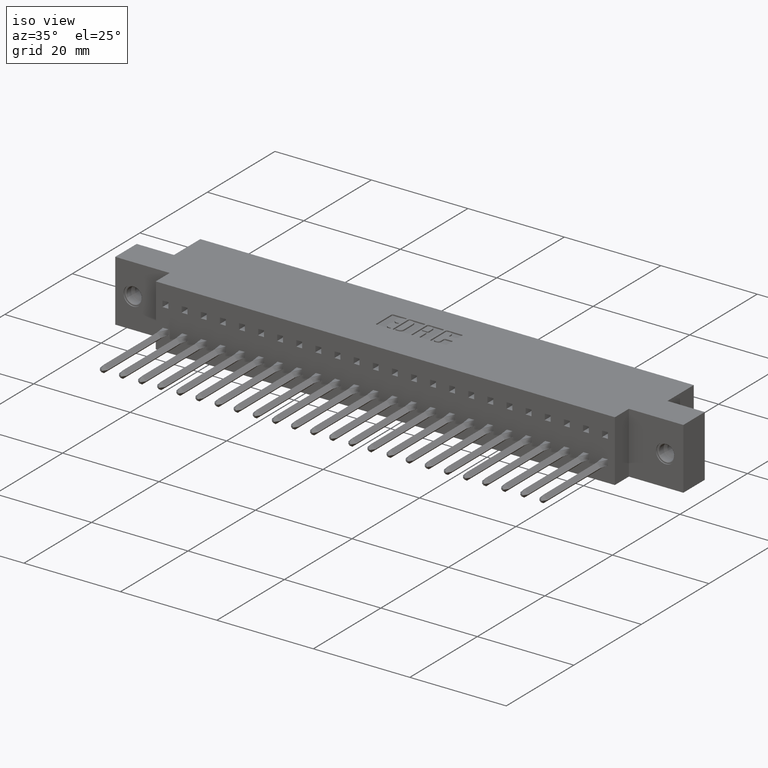
[diagram: clean part render]
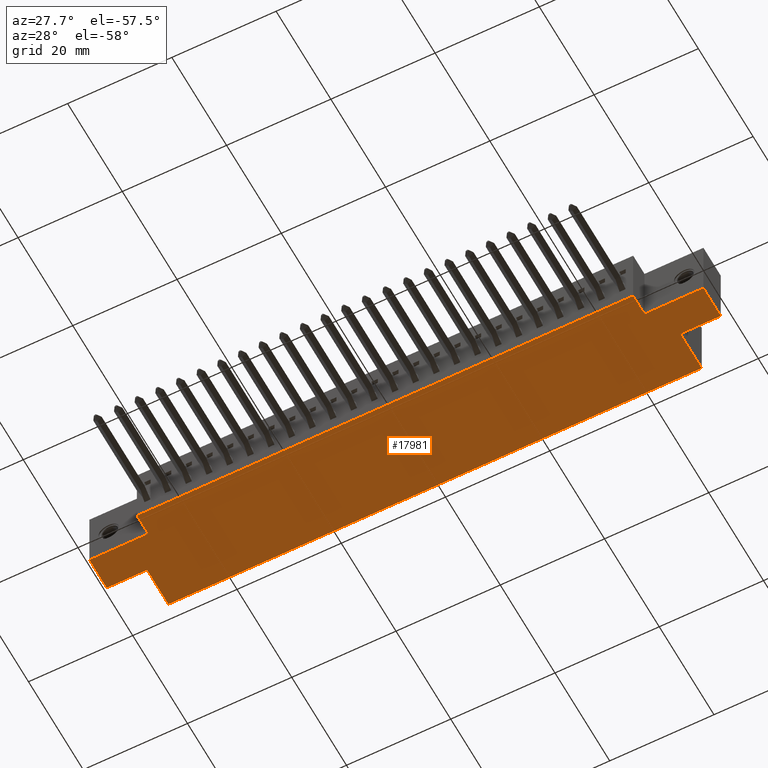
[diagram: tour spotlight — one face highlighted and labeled with its STEP entity id]
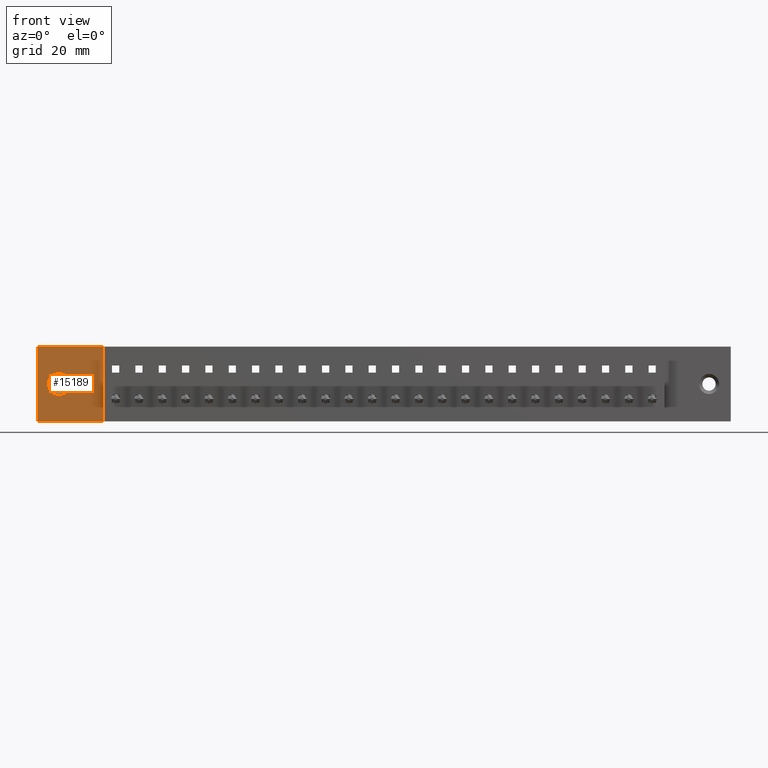
[diagram: tour spotlight — one face highlighted and labeled with its STEP entity id]
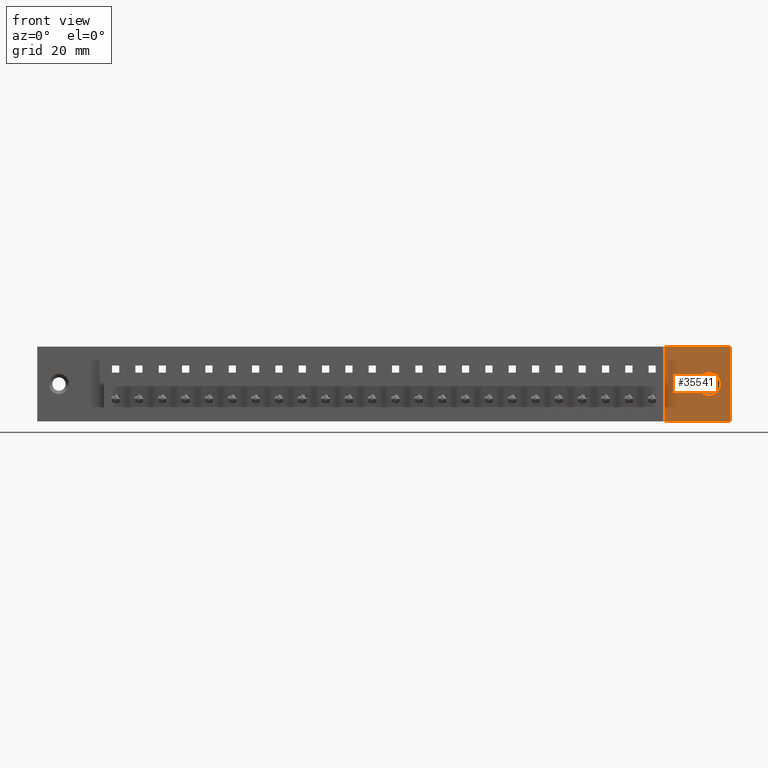
[diagram: tour spotlight — one face highlighted and labeled with its STEP entity id]
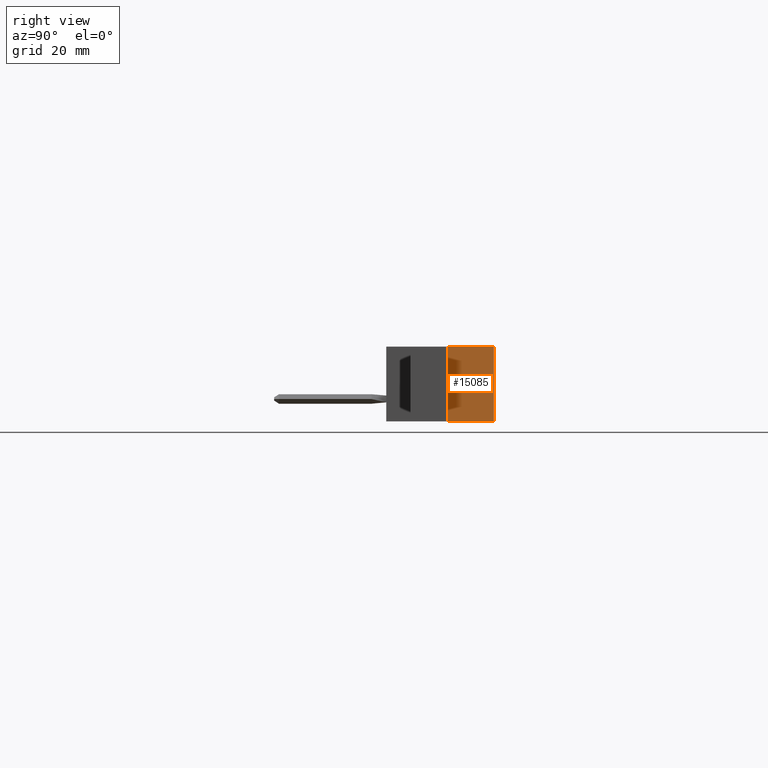
[diagram: tour spotlight — one face highlighted and labeled with its STEP entity id]
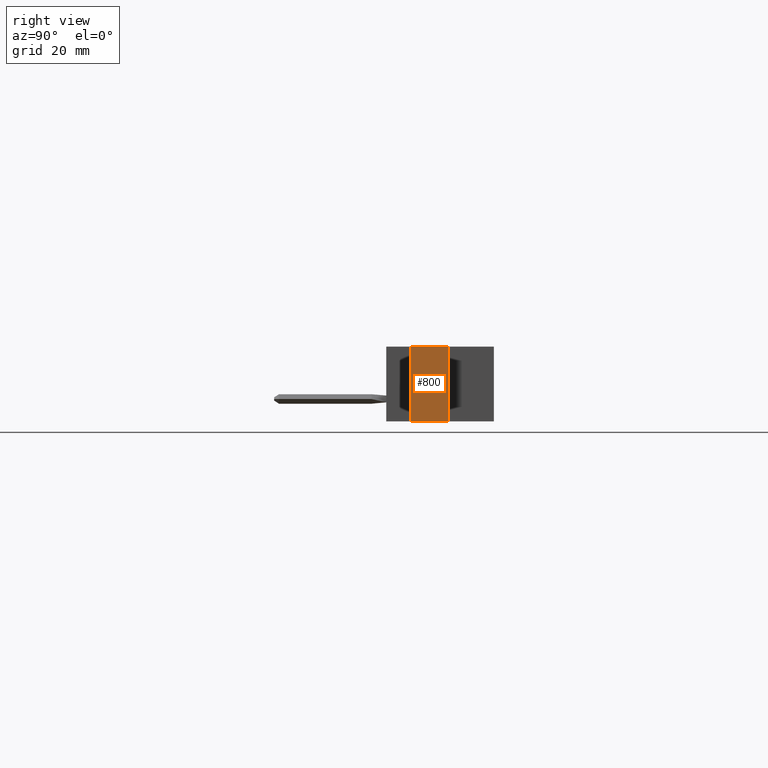
[diagram: tour spotlight — one face highlighted and labeled with its STEP entity id]
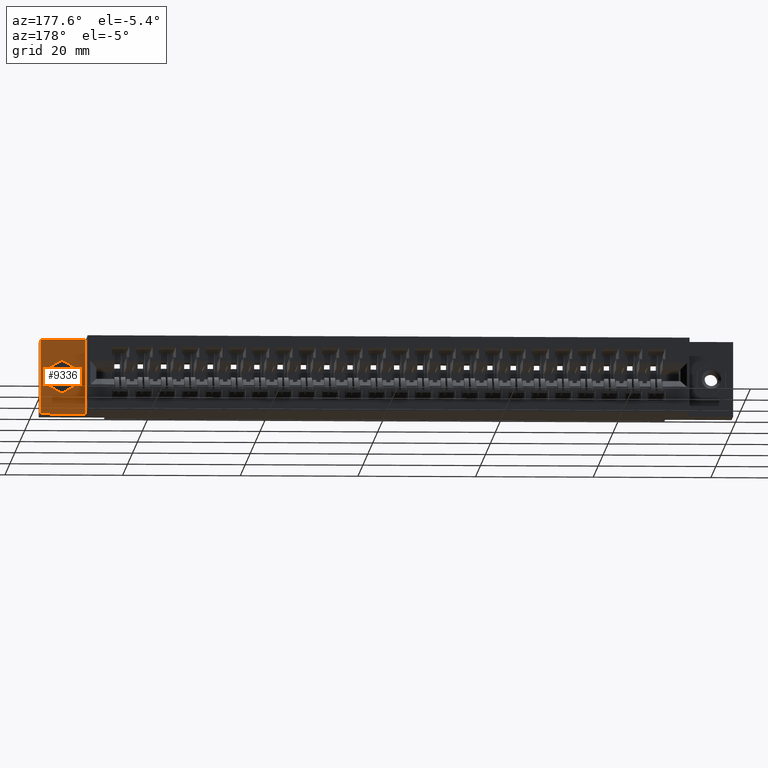
[diagram: tour spotlight — one face highlighted and labeled with its STEP entity id]
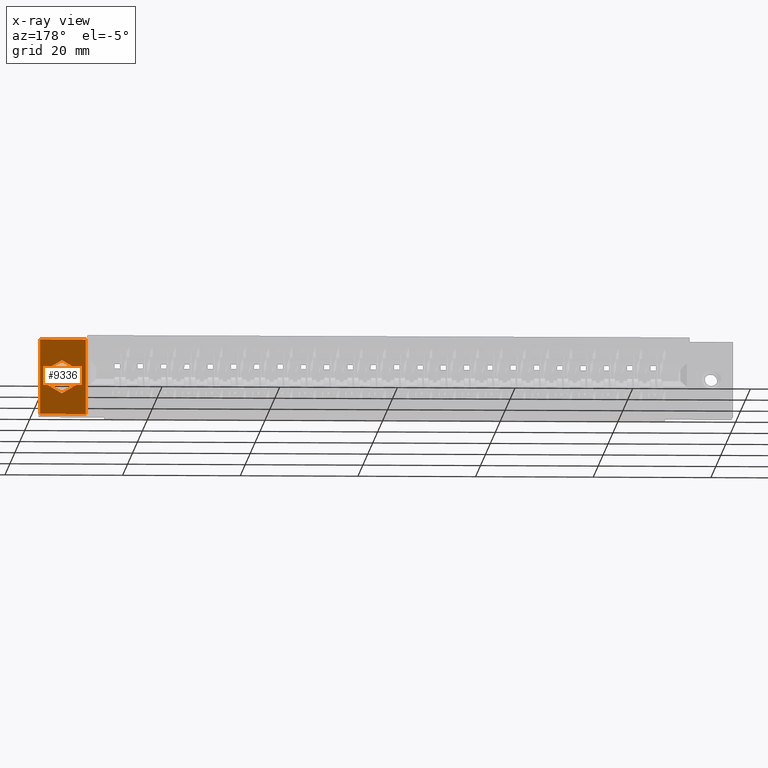
[diagram: x-ray of the same camera — body ghosted, this tour face saturated]
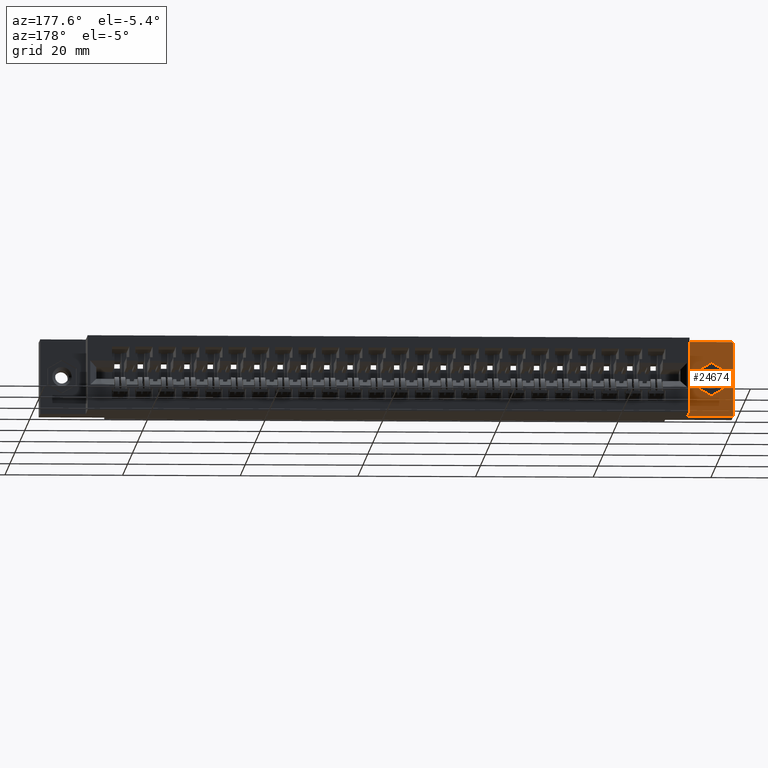
[diagram: tour spotlight — one face highlighted and labeled with its STEP entity id]
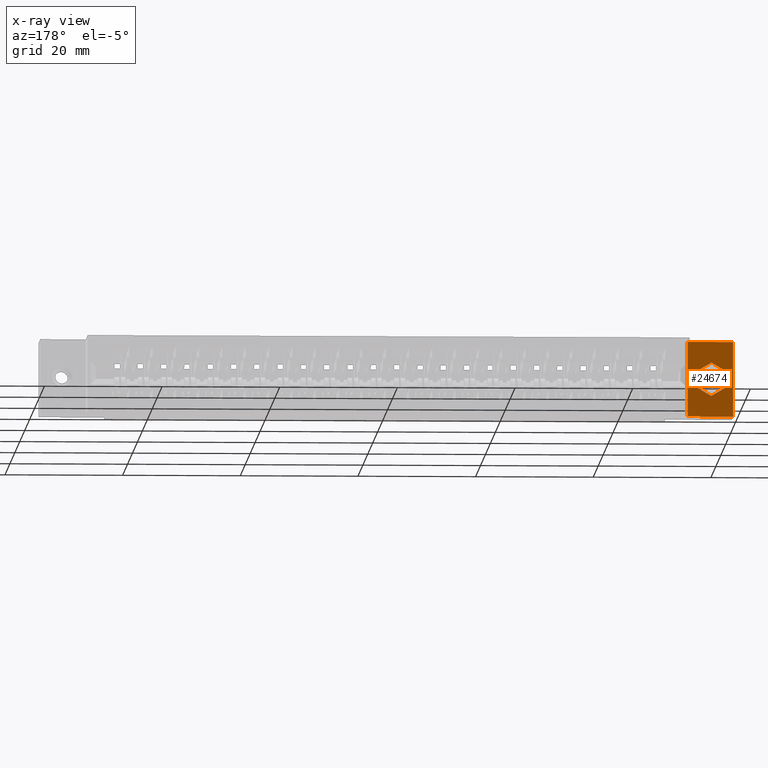
[diagram: x-ray of the same camera — body ghosted, this tour face saturated]
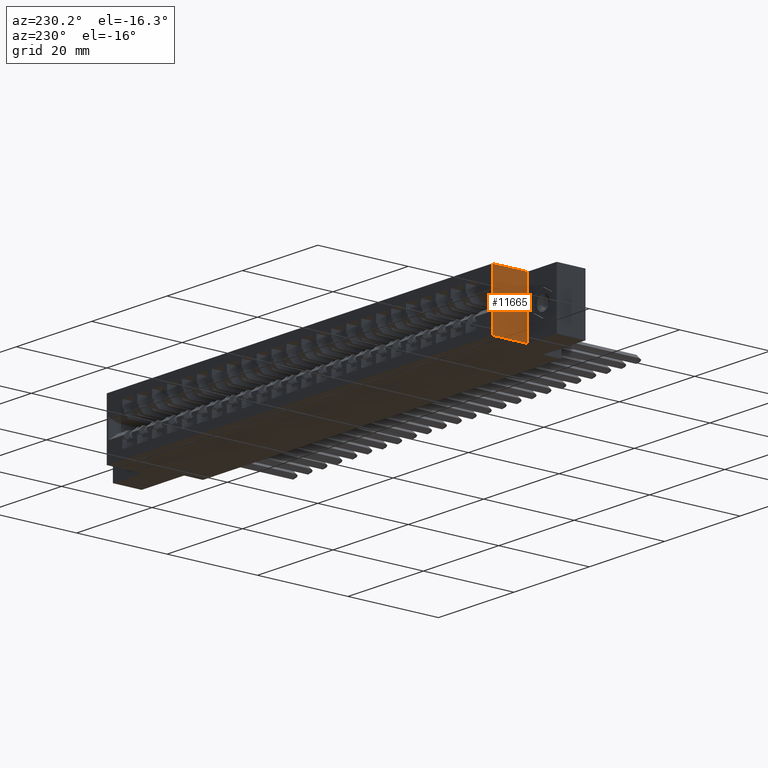
[diagram: tour spotlight — one face highlighted and labeled with its STEP entity id]
A machine part: a face-by-face anatomy tour. The part has 1962 B-rep faces; the first image is the clean iso view, then the 8 largest visible faces are spotlighted one at a time (largest first), each with its STEP entity span.

Face 1 — auxiliary view, entity #17981. In plain terms, the highlighted planar face has unit normal (0, 0, 1).
Definition (entity closure, byte-faithful):
#41 = EDGE_CURVE ( 'NONE', #26430, #31871, #36099, .T. ) ;
#1032 = CARTESIAN_POINT ( 'NONE',  ( 0.3050000000000000500, 0.4129999999999999200, -0.5000000000000000000 ) ) ;
#1100 = VERTEX_POINT ( 'NONE', #18389 ) ;
#1151 = DIRECTION ( 'NONE',  ( -1.000000000000000000, 0.0000000000000000000, -1.567453766856546600E-015 ) ) ;
#1240 = ORIENTED_EDGE ( 'NONE', *, *, #16453, .F. ) ;
#1256 = LINE ( 'NONE', #11097, #5221 ) ;
#1790 = EDGE_CURVE ( 'NONE', #26796, #2956, #12428, .T. ) ;
#2176 = VERTEX_POINT ( 'NONE', #5440 ) ;
#2956 = VERTEX_POINT ( 'NONE', #13789 ) ;
#3105 = CARTESIAN_POINT ( 'NONE',  ( 0.4450000000000002800, 0.1630000000000000100, -0.4999999999999997200 ) ) ;
#3253 = DIRECTION ( 'NONE',  ( -0.0000000000000000000, -1.000000000000000000, -0.0000000000000000000 ) ) ;
#3371 = EDGE_CURVE ( 'NONE', #4880, #31871, #4622, .T. ) ;
#4124 = CARTESIAN_POINT ( 'NONE',  ( 4.637999999999999900, 0.4129999999999999200, -0.5000000000000000000 ) ) ;
#4132 = CARTESIAN_POINT ( 'NONE',  ( 0.4450000000000002800, 0.1630000000000000100, -0.4999999999999997200 ) ) ;
#4388 = CARTESIAN_POINT ( 'NONE',  ( 4.192999999999999600, 0.1630000000000000100, -0.5000000000000000000 ) ) ;
#4448 = VERTEX_POINT ( 'NONE', #3105 ) ;
#4462 = CARTESIAN_POINT ( 'NONE',  ( 4.637999999999999900, 0.1630000000000000100, -0.5000000000000000000 ) ) ;
#4622 = LINE ( 'NONE', #7631, #19629 ) ;
#4880 = VERTEX_POINT ( 'NONE', #10275 ) ;
#5221 = VECTOR ( 'NONE', #3253, 39.37007874015748100 ) ;
#5440 = CARTESIAN_POINT ( 'NONE',  ( 0.4450000000000002800, 0.0000000000000000000, -0.4999999999999997200 ) ) ;
#5673 = ORIENTED_EDGE ( 'NONE', *, *, #21055, .F. ) ;
#5964 = VERTEX_POINT ( 'NONE', #31586 ) ;
#6850 = ORIENTED_EDGE ( 'NONE', *, *, #24984, .F. ) ;
#7311 = DIRECTION ( 'NONE',  ( 1.000000000000000000, -0.0000000000000000000, -1.688220670241959300E-015 ) ) ;
#7563 = DIRECTION ( 'NONE',  ( -0.0000000000000000000, -1.000000000000000000, -0.0000000000000000000 ) ) ;
#7631 = CARTESIAN_POINT ( 'NONE',  ( 4.637999999999999900, 0.7199999999999999700, -0.5000000000000000000 ) ) ;
#7806 = CARTESIAN_POINT ( 'NONE',  ( 0.0000000000000000000, 0.1630000000000000100, -0.5000000000000002200 ) ) ;
#8424 = ORIENTED_EDGE ( 'NONE', *, *, #41, .F. ) ;
#8487 = LINE ( 'NONE', #7806, #26538 ) ;
#8678 = ORIENTED_EDGE ( 'NONE', *, *, #1790, .F. ) ;
#8847 = DIRECTION ( 'NONE',  ( -1.000000000000000000, -0.0000000000000000000, -0.0000000000000000000 ) ) ;
#9886 = VECTOR ( 'NONE', #35419, 39.37007874015748100 ) ;
#10030 = EDGE_CURVE ( 'NONE', #17677, #2176, #18597, .T. ) ;
#10271 = VECTOR ( 'NONE', #7563, 39.37007874015748100 ) ;
#10275 = CARTESIAN_POINT ( 'NONE',  ( 4.637999999999999900, 0.4129999999999999200, -0.5000000000000000000 ) ) ;
#10747 = CARTESIAN_POINT ( 'NONE',  ( 4.333000000000000200, 0.4129999999999999200, -0.5000000000000004400 ) ) ;
#11097 = CARTESIAN_POINT ( 'NONE',  ( 4.192999999999999600, 0.1630000000000000100, -0.4999999999999992200 ) ) ;
#12061 = EDGE_CURVE ( 'NONE', #26430, #17677, #1256, .T. ) ;
#12186 = VERTEX_POINT ( 'NONE', #27842 ) ;
#12428 = LINE ( 'NONE', #10747, #19998 ) ;
#12821 = VECTOR ( 'NONE', #1151, 39.37007874015748100 ) ;
#13030 = CARTESIAN_POINT ( 'NONE',  ( 0.0000000000000000000, 0.4129999999999999200, -0.5000000000000000000 ) ) ;
#13132 = DIRECTION ( 'NONE',  ( -0.0000000000000000000, -1.000000000000000000, -0.0000000000000000000 ) ) ;
#13451 = AXIS2_PLACEMENT_3D ( 'NONE', #19022, #21745, #30379 ) ;
#13789 = CARTESIAN_POINT ( 'NONE',  ( 4.333000000000000200, 0.7199999999999999700, -0.5000000000000004400 ) ) ;
#14372 = CARTESIAN_POINT ( 'NONE',  ( 0.0000000000000000000, 0.7199999999999999700, -0.5000000000000000000 ) ) ;
#14384 = VECTOR ( 'NONE', #27646, 39.37007874015748100 ) ;
#14776 = DIRECTION ( 'NONE',  ( -1.000000000000000000, -0.0000000000000000000, -0.0000000000000000000 ) ) ;
#15328 = ORIENTED_EDGE ( 'NONE', *, *, #16559, .F. ) ;
#15415 = ORIENTED_EDGE ( 'NONE', *, *, #29865, .T. ) ;
#15527 = LINE ( 'NONE', #24410, #10271 ) ;
#16453 = EDGE_CURVE ( 'NONE', #12186, #1100, #15527, .T. ) ;
#16559 = EDGE_CURVE ( 'NONE', #1100, #4448, #8487, .T. ) ;
#16913 = LINE ( 'NONE', #14372, #34151 ) ;
#17513 = CARTESIAN_POINT ( 'NONE',  ( 4.333000000000000200, 0.4129999999999999200, -0.5000000000000004400 ) ) ;
#17677 = VERTEX_POINT ( 'NONE', #30797 ) ;
#17705 = LINE ( 'NONE', #4124, #12821 ) ;
#17883 = LINE ( 'NONE', #25005, #34654 ) ;
#17981 = ADVANCED_FACE ( 'NONE', ( #27838 ), #21375, .F. ) ;
#18389 = CARTESIAN_POINT ( 'NONE',  ( 0.0000000000000000000, 0.1630000000000000100, -0.5000000000000000000 ) ) ;
#18597 = LINE ( 'NONE', #23183, #22577 ) ;
#19022 = CARTESIAN_POINT ( 'NONE',  ( 0.0000000000000000000, 0.7199999999999999700, -0.5000000000000000000 ) ) ;
#19330 = ORIENTED_EDGE ( 'NONE', *, *, #34921, .F. ) ;
#19629 = VECTOR ( 'NONE', #13132, 39.37007874015748100 ) ;
#19998 = VECTOR ( 'NONE', #27406, 39.37007874015748100 ) ;
#21055 = EDGE_CURVE ( 'NONE', #2956, #5964, #16913, .T. ) ;
#21375 = PLANE ( 'NONE',  #13451 ) ;
#21745 = DIRECTION ( 'NONE',  ( 0.0000000000000000000, 0.0000000000000000000, 1.000000000000000000 ) ) ;
#22577 = VECTOR ( 'NONE', #14776, 39.37007874015748100 ) ;
#23183 = CARTESIAN_POINT ( 'NONE',  ( 0.0000000000000000000, 0.0000000000000000000, -0.5000000000000000000 ) ) ;
#24165 = ORIENTED_EDGE ( 'NONE', *, *, #27884, .F. ) ;
#24410 = CARTESIAN_POINT ( 'NONE',  ( 0.0000000000000000000, 0.7199999999999999700, -0.5000000000000000000 ) ) ;
#24982 = LINE ( 'NONE', #4132, #14384 ) ;
#24984 = EDGE_CURVE ( 'NONE', #4448, #2176, #24982, .T. ) ;
#25005 = CARTESIAN_POINT ( 'NONE',  ( 0.3049999999999999900, 0.4129999999999999200, -0.5000000000000000000 ) ) ;
#25373 = DIRECTION ( 'NONE',  ( -0.0000000000000000000, 1.000000000000000000, -0.0000000000000000000 ) ) ;
#26430 = VERTEX_POINT ( 'NONE', #4388 ) ;
#26538 = VECTOR ( 'NONE', #27635, 39.37007874015748100 ) ;
#26796 = VERTEX_POINT ( 'NONE', #17513 ) ;
#26951 = EDGE_LOOP ( 'NONE', ( #33294, #6850, #15328, #1240, #24165, #15415, #5673, #8678, #19330, #30341, #8424, #31322 ) ) ;
#27406 = DIRECTION ( 'NONE',  ( -0.0000000000000000000, 1.000000000000000000, -0.0000000000000000000 ) ) ;
#27635 = DIRECTION ( 'NONE',  ( 1.000000000000000000, 0.0000000000000000000, 1.227796851085061300E-015 ) ) ;
#27646 = DIRECTION ( 'NONE',  ( -0.0000000000000000000, -1.000000000000000000, -0.0000000000000000000 ) ) ;
#27838 = FACE_OUTER_BOUND ( 'NONE', #26951, .T. ) ;
#27842 = CARTESIAN_POINT ( 'NONE',  ( 0.0000000000000000000, 0.4129999999999999200, -0.5000000000000000000 ) ) ;
#27884 = EDGE_CURVE ( 'NONE', #30901, #12186, #32442, .T. ) ;
#29865 = EDGE_CURVE ( 'NONE', #30901, #5964, #17883, .T. ) ;
#30341 = ORIENTED_EDGE ( 'NONE', *, *, #3371, .T. ) ;
#30379 = DIRECTION ( 'NONE',  ( 1.000000000000000000, 0.0000000000000000000, -0.0000000000000000000 ) ) ;
#30784 = CARTESIAN_POINT ( 'NONE',  ( 4.637999999999999900, 0.1630000000000000100, -0.5000000000000000000 ) ) ;
#30797 = CARTESIAN_POINT ( 'NONE',  ( 4.192999999999999600, 0.0000000000000000000, -0.4999999999999992200 ) ) ;
#30901 = VERTEX_POINT ( 'NONE', #1032 ) ;
#31322 = ORIENTED_EDGE ( 'NONE', *, *, #12061, .T. ) ;
#31586 = CARTESIAN_POINT ( 'NONE',  ( 0.3049999999999999900, 0.7199999999999999700, -0.5000000000000000000 ) ) ;
#31871 = VERTEX_POINT ( 'NONE', #30784 ) ;
#32113 = VECTOR ( 'NONE', #7311, 39.37007874015748100 ) ;
#32442 = LINE ( 'NONE', #13030, #9886 ) ;
#33294 = ORIENTED_EDGE ( 'NONE', *, *, #10030, .T. ) ;
#34151 = VECTOR ( 'NONE', #8847, 39.37007874015748100 ) ;
#34654 = VECTOR ( 'NONE', #25373, 39.37007874015748100 ) ;
#34921 = EDGE_CURVE ( 'NONE', #4880, #26796, #17705, .T. ) ;
#35419 = DIRECTION ( 'NONE',  ( -1.000000000000000000, -0.0000000000000000000, -0.0000000000000000000 ) ) ;
#36099 = LINE ( 'NONE', #4462, #32113 ) ;

Face 2 — front view, entity #15189. In plain terms, the highlighted planar face has unit normal (0, -1, 0).
Definition (entity closure, byte-faithful):
#219 = CARTESIAN_POINT ( 'NONE',  ( 0.1455000000000000200, 0.1630000000000000100, -0.1720000000000000100 ) ) ;
#1100 = VERTEX_POINT ( 'NONE', #18389 ) ;
#1407 = PLANE ( 'NONE',  #16725 ) ;
#1430 = VECTOR ( 'NONE', #15182, 39.37007874015748100 ) ;
#2491 = EDGE_CURVE ( 'NONE', #7950, #30888, #30585, .T. ) ;
#3105 = CARTESIAN_POINT ( 'NONE',  ( 0.4450000000000002800, 0.1630000000000000100, -0.4999999999999997200 ) ) ;
#3547 = DIRECTION ( 'NONE',  ( 0.0000000000000000000, 0.0000000000000000000, -1.000000000000000000 ) ) ;
#3723 = CARTESIAN_POINT ( 'NONE',  ( 2.731847993664263200E-016, 0.1630000000000000100, 3.951581205970576600E-015 ) ) ;
#4160 = DIRECTION ( 'NONE',  ( 0.0000000000000000000, 0.0000000000000000000, 1.000000000000000000 ) ) ;
#4448 = VERTEX_POINT ( 'NONE', #3105 ) ;
#5758 = EDGE_CURVE ( 'NONE', #4448, #7950, #9302, .T. ) ;
#5984 = VERTEX_POINT ( 'NONE', #219 ) ;
#7129 = AXIS2_PLACEMENT_3D ( 'NONE', #26046, #20402, #3547 ) ;
#7806 = CARTESIAN_POINT ( 'NONE',  ( 0.0000000000000000000, 0.1630000000000000100, -0.5000000000000002200 ) ) ;
#7950 = VERTEX_POINT ( 'NONE', #15844 ) ;
#8487 = LINE ( 'NONE', #7806, #26538 ) ;
#8952 = ORIENTED_EDGE ( 'NONE', *, *, #29910, .T. ) ;
#9302 = LINE ( 'NONE', #23251, #30487 ) ;
#10373 = FACE_BOUND ( 'NONE', #26472, .T. ) ;
#10944 = DIRECTION ( 'NONE',  ( 0.0000000000000000000, 0.0000000000000000000, -1.000000000000000000 ) ) ;
#12118 = CARTESIAN_POINT ( 'NONE',  ( 0.0000000000000000000, 0.1630000000000000100, -0.5000000000000002200 ) ) ;
#12942 = DIRECTION ( 'NONE',  ( 0.0000000000000000000, -0.0000000000000000000, -1.000000000000000000 ) ) ;
#15182 = DIRECTION ( 'NONE',  ( -5.463695987328480100E-016, -0.0000000000000000000, -1.000000000000000000 ) ) ;
#15189 = ADVANCED_FACE ( 'NONE', ( #17889, #10373 ), #1407, .T. ) ;
#15226 = ORIENTED_EDGE ( 'NONE', *, *, #18331, .T. ) ;
#15844 = CARTESIAN_POINT ( 'NONE',  ( 0.4450000000000002800, 0.1630000000000000100, -3.443706799202358000E-016 ) ) ;
#15930 = LINE ( 'NONE', #12118, #1430 ) ;
#15999 = VECTOR ( 'NONE', #26113, 39.37007874015748100 ) ;
#16504 = DIRECTION ( 'NONE',  ( -0.0000000000000000000, 1.000000000000000000, -0.0000000000000000000 ) ) ;
#16559 = EDGE_CURVE ( 'NONE', #1100, #4448, #8487, .T. ) ;
#16725 = AXIS2_PLACEMENT_3D ( 'NONE', #21487, #29875, #12942 ) ;
#17889 = FACE_OUTER_BOUND ( 'NONE', #25663, .T. ) ;
#18331 = EDGE_CURVE ( 'NONE', #5984, #25705, #30958, .T. ) ;
#18389 = CARTESIAN_POINT ( 'NONE',  ( 0.0000000000000000000, 0.1630000000000000100, -0.5000000000000000000 ) ) ;
#20402 = DIRECTION ( 'NONE',  ( -0.0000000000000000000, 1.000000000000000000, -0.0000000000000000000 ) ) ;
#21487 = CARTESIAN_POINT ( 'NONE',  ( 0.4450000000000002800, 0.1630000000000000100, -0.4999999999999997200 ) ) ;
#21760 = EDGE_CURVE ( 'NONE', #30888, #1100, #15930, .T. ) ;
#23251 = CARTESIAN_POINT ( 'NONE',  ( 0.4450000000000002800, 0.1630000000000000100, -0.4999999999999997200 ) ) ;
#23458 = CARTESIAN_POINT ( 'NONE',  ( 2.731847993664263200E-016, 0.1630000000000000100, 3.951581205970576600E-015 ) ) ;
#24100 = ORIENTED_EDGE ( 'NONE', *, *, #16559, .T. ) ;
#24442 = CIRCLE ( 'NONE', #36064, 0.07800000000000002800 ) ;
#24513 = ORIENTED_EDGE ( 'NONE', *, *, #21760, .T. ) ;
#25663 = EDGE_LOOP ( 'NONE', ( #24100, #28340, #28393, #24513 ) ) ;
#25705 = VERTEX_POINT ( 'NONE', #33424 ) ;
#26046 = CARTESIAN_POINT ( 'NONE',  ( 0.1455000000000000200, 0.1630000000000000100, -0.2500000000000000000 ) ) ;
#26113 = DIRECTION ( 'NONE',  ( -1.000000000000000000, -0.0000000000000000000, 9.653824462675984600E-015 ) ) ;
#26472 = EDGE_LOOP ( 'NONE', ( #15226, #8952 ) ) ;
#26538 = VECTOR ( 'NONE', #27635, 39.37007874015748100 ) ;
#27635 = DIRECTION ( 'NONE',  ( 1.000000000000000000, 0.0000000000000000000, 1.227796851085061300E-015 ) ) ;
#28331 = CARTESIAN_POINT ( 'NONE',  ( 0.1455000000000000200, 0.1630000000000000100, -0.2500000000000000000 ) ) ;
#28340 = ORIENTED_EDGE ( 'NONE', *, *, #5758, .T. ) ;
#28393 = ORIENTED_EDGE ( 'NONE', *, *, #2491, .T. ) ;
#29875 = DIRECTION ( 'NONE',  ( 0.0000000000000000000, -1.000000000000000000, 0.0000000000000000000 ) ) ;
#29910 = EDGE_CURVE ( 'NONE', #25705, #5984, #24442, .T. ) ;
#30487 = VECTOR ( 'NONE', #4160, 39.37007874015748100 ) ;
#30585 = LINE ( 'NONE', #3723, #15999 ) ;
#30888 = VERTEX_POINT ( 'NONE', #23458 ) ;
#30958 = CIRCLE ( 'NONE', #7129, 0.07800000000000002800 ) ;
#33424 = CARTESIAN_POINT ( 'NONE',  ( 0.1455000000000000500, 0.1630000000000000100, -0.3280000000000000100 ) ) ;
#36064 = AXIS2_PLACEMENT_3D ( 'NONE', #28331, #16504, #10944 ) ;

Face 3 — front view, entity #35541. In plain terms, the highlighted planar face has unit normal (0, -1, 0).
Definition (entity closure, byte-faithful):
#41 = EDGE_CURVE ( 'NONE', #26430, #31871, #36099, .T. ) ;
#261 = EDGE_CURVE ( 'NONE', #30299, #26430, #7786, .T. ) ;
#740 = LINE ( 'NONE', #24243, #13497 ) ;
#1362 = CARTESIAN_POINT ( 'NONE',  ( 4.637999999999999900, 0.1630000000000000100, -0.5000000000000000000 ) ) ;
#2543 = ORIENTED_EDGE ( 'NONE', *, *, #261, .T. ) ;
#3271 = ORIENTED_EDGE ( 'NONE', *, *, #21953, .T. ) ;
#3876 = ORIENTED_EDGE ( 'NONE', *, *, #32700, .T. ) ;
#4388 = CARTESIAN_POINT ( 'NONE',  ( 4.192999999999999600, 0.1630000000000000100, -0.5000000000000000000 ) ) ;
#4424 = CARTESIAN_POINT ( 'NONE',  ( 4.192999999999999600, 0.1630000000000000100, 0.0000000000000000000 ) ) ;
#4462 = CARTESIAN_POINT ( 'NONE',  ( 4.637999999999999900, 0.1630000000000000100, -0.5000000000000000000 ) ) ;
#6942 = PLANE ( 'NONE',  #35949 ) ;
#7004 = ORIENTED_EDGE ( 'NONE', *, *, #41, .T. ) ;
#7311 = DIRECTION ( 'NONE',  ( 1.000000000000000000, -0.0000000000000000000, -1.688220670241959300E-015 ) ) ;
#7786 = LINE ( 'NONE', #15336, #20587 ) ;
#7991 = EDGE_CURVE ( 'NONE', #33626, #30299, #740, .T. ) ;
#8890 = EDGE_LOOP ( 'NONE', ( #3876, #27335, #2543, #7004 ) ) ;
#11537 = EDGE_CURVE ( 'NONE', #35078, #24436, #13176, .T. ) ;
#12707 = DIRECTION ( 'NONE',  ( 0.0000000000000000000, 0.0000000000000000000, -1.000000000000000000 ) ) ;
#13176 = CIRCLE ( 'NONE', #18055, 0.07800000000000009700 ) ;
#13226 = FACE_OUTER_BOUND ( 'NONE', #8890, .T. ) ;
#13497 = VECTOR ( 'NONE', #32789, 39.37007874015748100 ) ;
#14532 = FACE_BOUND ( 'NONE', #30369, .T. ) ;
#15013 = AXIS2_PLACEMENT_3D ( 'NONE', #21626, #18395, #12707 ) ;
#15336 = CARTESIAN_POINT ( 'NONE',  ( 4.192999999999999600, 0.1630000000000000100, -0.4999999999999992200 ) ) ;
#16830 = DIRECTION ( 'NONE',  ( -0.0000000000000000000, 1.000000000000000000, -0.0000000000000000000 ) ) ;
#18055 = AXIS2_PLACEMENT_3D ( 'NONE', #22502, #16830, #36644 ) ;
#18395 = DIRECTION ( 'NONE',  ( -0.0000000000000000000, 1.000000000000000000, -0.0000000000000000000 ) ) ;
#20505 = LINE ( 'NONE', #1362, #21813 ) ;
#20587 = VECTOR ( 'NONE', #26342, 39.37007874015748100 ) ;
#20735 = DIRECTION ( 'NONE',  ( 0.0000000000000000000, 0.0000000000000000000, 1.000000000000000000 ) ) ;
#21626 = CARTESIAN_POINT ( 'NONE',  ( 4.492499999999999700, 0.1630000000000000100, -0.2500000000000005600 ) ) ;
#21813 = VECTOR ( 'NONE', #20735, 39.37007874015748100 ) ;
#21953 = EDGE_CURVE ( 'NONE', #24436, #35078, #31939, .T. ) ;
#22502 = CARTESIAN_POINT ( 'NONE',  ( 4.492499999999999700, 0.1630000000000000100, -0.2500000000000005600 ) ) ;
#24243 = CARTESIAN_POINT ( 'NONE',  ( 4.637999999999999900, 0.1630000000000000100, 0.0000000000000000000 ) ) ;
#24436 = VERTEX_POINT ( 'NONE', #29675 ) ;
#26133 = CARTESIAN_POINT ( 'NONE',  ( 4.637999999999999900, 0.1630000000000000100, 0.0000000000000000000 ) ) ;
#26342 = DIRECTION ( 'NONE',  ( -0.0000000000000000000, -0.0000000000000000000, -1.000000000000000000 ) ) ;
#26430 = VERTEX_POINT ( 'NONE', #4388 ) ;
#26500 = DIRECTION ( 'NONE',  ( 0.0000000000000000000, -1.000000000000000000, 0.0000000000000000000 ) ) ;
#27335 = ORIENTED_EDGE ( 'NONE', *, *, #7991, .T. ) ;
#29675 = CARTESIAN_POINT ( 'NONE',  ( 4.492499999999999700, 0.1630000000000000100, -0.3280000000000006200 ) ) ;
#30299 = VERTEX_POINT ( 'NONE', #4424 ) ;
#30369 = EDGE_LOOP ( 'NONE', ( #31660, #3271 ) ) ;
#30784 = CARTESIAN_POINT ( 'NONE',  ( 4.637999999999999900, 0.1630000000000000100, -0.5000000000000000000 ) ) ;
#31660 = ORIENTED_EDGE ( 'NONE', *, *, #11537, .T. ) ;
#31871 = VERTEX_POINT ( 'NONE', #30784 ) ;
#31939 = CIRCLE ( 'NONE', #15013, 0.07800000000000009700 ) ;
#32113 = VECTOR ( 'NONE', #7311, 39.37007874015748100 ) ;
#32471 = CARTESIAN_POINT ( 'NONE',  ( 4.637999999999999900, 0.1630000000000000100, 0.0000000000000000000 ) ) ;
#32700 = EDGE_CURVE ( 'NONE', #31871, #33626, #20505, .T. ) ;
#32738 = CARTESIAN_POINT ( 'NONE',  ( 4.492499999999999700, 0.1630000000000000100, -0.1720000000000004600 ) ) ;
#32789 = DIRECTION ( 'NONE',  ( -1.000000000000000000, 0.0000000000000000000, 0.0000000000000000000 ) ) ;
#33626 = VERTEX_POINT ( 'NONE', #26133 ) ;
#35060 = DIRECTION ( 'NONE',  ( 0.0000000000000000000, -0.0000000000000000000, -1.000000000000000000 ) ) ;
#35078 = VERTEX_POINT ( 'NONE', #32738 ) ;
#35541 = ADVANCED_FACE ( 'NONE', ( #13226, #14532 ), #6942, .T. ) ;
#35949 = AXIS2_PLACEMENT_3D ( 'NONE', #32471, #26500, #35060 ) ;
#36099 = LINE ( 'NONE', #4462, #32113 ) ;
#36644 = DIRECTION ( 'NONE',  ( 0.0000000000000000000, 0.0000000000000000000, -1.000000000000000000 ) ) ;

Face 4 — right view, entity #15085. In plain terms, the highlighted planar face has unit normal (-1, 0, -0).
Definition (entity closure, byte-faithful):
#346 = CARTESIAN_POINT ( 'NONE',  ( 4.333000000000000200, 0.4129999999999999200, -5.119635943835509400E-016 ) ) ;
#1790 = EDGE_CURVE ( 'NONE', #26796, #2956, #12428, .T. ) ;
#1936 = EDGE_LOOP ( 'NONE', ( #17975, #20898, #20790, #23721 ) ) ;
#2956 = VERTEX_POINT ( 'NONE', #13789 ) ;
#4275 = VECTOR ( 'NONE', #32621, 39.37007874015748100 ) ;
#5095 = FACE_OUTER_BOUND ( 'NONE', #1936, .T. ) ;
#5970 = EDGE_CURVE ( 'NONE', #26989, #33567, #9267, .T. ) ;
#9267 = LINE ( 'NONE', #346, #26926 ) ;
#10747 = CARTESIAN_POINT ( 'NONE',  ( 4.333000000000000200, 0.4129999999999999200, -0.5000000000000004400 ) ) ;
#11200 = EDGE_CURVE ( 'NONE', #26796, #26989, #11460, .T. ) ;
#11460 = LINE ( 'NONE', #26424, #23392 ) ;
#12428 = LINE ( 'NONE', #10747, #19998 ) ;
#12444 = DIRECTION ( 'NONE',  ( -1.000000000000000000, 0.0000000000000000000, -1.092739197465705300E-015 ) ) ;
#13789 = CARTESIAN_POINT ( 'NONE',  ( 4.333000000000000200, 0.7199999999999999700, -0.5000000000000004400 ) ) ;
#15085 = ADVANCED_FACE ( 'NONE', ( #5095 ), #17303, .F. ) ;
#16638 = CARTESIAN_POINT ( 'NONE',  ( 4.333000000000000200, 0.4129999999999999200, -5.119635943835509400E-016 ) ) ;
#17205 = AXIS2_PLACEMENT_3D ( 'NONE', #29389, #12444, #34972 ) ;
#17303 = PLANE ( 'NONE',  #17205 ) ;
#17513 = CARTESIAN_POINT ( 'NONE',  ( 4.333000000000000200, 0.4129999999999999200, -0.5000000000000004400 ) ) ;
#17975 = ORIENTED_EDGE ( 'NONE', *, *, #20202, .T. ) ;
#18154 = DIRECTION ( 'NONE',  ( -1.092739197465705300E-015, 0.0000000000000000000, 1.000000000000000000 ) ) ;
#19998 = VECTOR ( 'NONE', #27406, 39.37007874015748100 ) ;
#20202 = EDGE_CURVE ( 'NONE', #2956, #33567, #25849, .T. ) ;
#20312 = DIRECTION ( 'NONE',  ( -0.0000000000000000000, 1.000000000000000000, -0.0000000000000000000 ) ) ;
#20790 = ORIENTED_EDGE ( 'NONE', *, *, #11200, .F. ) ;
#20898 = ORIENTED_EDGE ( 'NONE', *, *, #5970, .F. ) ;
#23392 = VECTOR ( 'NONE', #18154, 39.37007874015748100 ) ;
#23721 = ORIENTED_EDGE ( 'NONE', *, *, #1790, .T. ) ;
#25849 = LINE ( 'NONE', #26513, #4275 ) ;
#26424 = CARTESIAN_POINT ( 'NONE',  ( 4.333000000000000200, 0.4129999999999999200, -0.5000000000000004400 ) ) ;
#26513 = CARTESIAN_POINT ( 'NONE',  ( 4.333000000000000200, 0.7199999999999999700, -0.5000000000000004400 ) ) ;
#26796 = VERTEX_POINT ( 'NONE', #17513 ) ;
#26926 = VECTOR ( 'NONE', #20312, 39.37007874015748100 ) ;
#26989 = VERTEX_POINT ( 'NONE', #16638 ) ;
#27406 = DIRECTION ( 'NONE',  ( -0.0000000000000000000, 1.000000000000000000, -0.0000000000000000000 ) ) ;
#29389 = CARTESIAN_POINT ( 'NONE',  ( 4.333000000000000200, 0.4129999999999999200, -0.5000000000000004400 ) ) ;
#32621 = DIRECTION ( 'NONE',  ( -1.092739197465705300E-015, 0.0000000000000000000, 1.000000000000000000 ) ) ;
#33567 = VERTEX_POINT ( 'NONE', #34335 ) ;
#34335 = CARTESIAN_POINT ( 'NONE',  ( 4.333000000000000200, 0.7199999999999999700, -5.119635943835509400E-016 ) ) ;
#34972 = DIRECTION ( 'NONE',  ( -1.092739197465705300E-015, 0.0000000000000000000, 1.000000000000000000 ) ) ;

Face 5 — right view, entity #800. In plain terms, the highlighted planar face has unit normal (-1, 0, 0).
Definition (entity closure, byte-faithful):
#800 = ADVANCED_FACE ( 'NONE', ( #24487 ), #16122, .F. ) ;
#1207 = ORIENTED_EDGE ( 'NONE', *, *, #3371, .F. ) ;
#1297 = CARTESIAN_POINT ( 'NONE',  ( 4.637999999999999900, 0.4129999999999999200, -0.5000000000000000000 ) ) ;
#1362 = CARTESIAN_POINT ( 'NONE',  ( 4.637999999999999900, 0.1630000000000000100, -0.5000000000000000000 ) ) ;
#1454 = ORIENTED_EDGE ( 'NONE', *, *, #21814, .F. ) ;
#1695 = ORIENTED_EDGE ( 'NONE', *, *, #19222, .T. ) ;
#1737 = CARTESIAN_POINT ( 'NONE',  ( 4.637999999999999900, 0.7199999999999999700, 0.0000000000000000000 ) ) ;
#2316 = VECTOR ( 'NONE', #21015, 39.37007874015748100 ) ;
#2369 = CARTESIAN_POINT ( 'NONE',  ( 4.637999999999999900, 0.7199999999999999700, 0.0000000000000000000 ) ) ;
#3371 = EDGE_CURVE ( 'NONE', #4880, #31871, #4622, .T. ) ;
#4622 = LINE ( 'NONE', #7631, #19629 ) ;
#4697 = DIRECTION ( 'NONE',  ( 0.0000000000000000000, 0.0000000000000000000, 1.000000000000000000 ) ) ;
#4880 = VERTEX_POINT ( 'NONE', #10275 ) ;
#7631 = CARTESIAN_POINT ( 'NONE',  ( 4.637999999999999900, 0.7199999999999999700, -0.5000000000000000000 ) ) ;
#9648 = VECTOR ( 'NONE', #19510, 39.37007874015748100 ) ;
#10275 = CARTESIAN_POINT ( 'NONE',  ( 4.637999999999999900, 0.4129999999999999200, -0.5000000000000000000 ) ) ;
#13132 = DIRECTION ( 'NONE',  ( -0.0000000000000000000, -1.000000000000000000, -0.0000000000000000000 ) ) ;
#15098 = ORIENTED_EDGE ( 'NONE', *, *, #32700, .F. ) ;
#15788 = LINE ( 'NONE', #2369, #9648 ) ;
#16122 = PLANE ( 'NONE',  #16950 ) ;
#16950 = AXIS2_PLACEMENT_3D ( 'NONE', #1737, #27237, #4697 ) ;
#19222 = EDGE_CURVE ( 'NONE', #33547, #33626, #15788, .T. ) ;
#19510 = DIRECTION ( 'NONE',  ( -0.0000000000000000000, -1.000000000000000000, -0.0000000000000000000 ) ) ;
#19629 = VECTOR ( 'NONE', #13132, 39.37007874015748100 ) ;
#19901 = EDGE_LOOP ( 'NONE', ( #15098, #1207, #1454, #1695 ) ) ;
#20505 = LINE ( 'NONE', #1362, #21813 ) ;
#20735 = DIRECTION ( 'NONE',  ( 0.0000000000000000000, 0.0000000000000000000, 1.000000000000000000 ) ) ;
#21015 = DIRECTION ( 'NONE',  ( -0.0000000000000000000, -0.0000000000000000000, -1.000000000000000000 ) ) ;
#21813 = VECTOR ( 'NONE', #20735, 39.37007874015748100 ) ;
#21814 = EDGE_CURVE ( 'NONE', #33547, #4880, #23067, .T. ) ;
#23067 = LINE ( 'NONE', #1297, #2316 ) ;
#24487 = FACE_OUTER_BOUND ( 'NONE', #19901, .T. ) ;
#26133 = CARTESIAN_POINT ( 'NONE',  ( 4.637999999999999900, 0.1630000000000000100, 0.0000000000000000000 ) ) ;
#27237 = DIRECTION ( 'NONE',  ( -1.000000000000000000, 0.0000000000000000000, 0.0000000000000000000 ) ) ;
#28623 = CARTESIAN_POINT ( 'NONE',  ( 4.637999999999999900, 0.4129999999999999200, 0.0000000000000000000 ) ) ;
#30784 = CARTESIAN_POINT ( 'NONE',  ( 4.637999999999999900, 0.1630000000000000100, -0.5000000000000000000 ) ) ;
#31871 = VERTEX_POINT ( 'NONE', #30784 ) ;
#32700 = EDGE_CURVE ( 'NONE', #31871, #33626, #20505, .T. ) ;
#33547 = VERTEX_POINT ( 'NONE', #28623 ) ;
#33626 = VERTEX_POINT ( 'NONE', #26133 ) ;

Face 6 — auxiliary view, entity #9336. An x-ray twin of the same camera follows (body ghosted, this face saturated) — the face is partly hidden behind the body. In plain terms, the highlighted planar face has unit normal (0, 1, 0).
Definition (entity closure, byte-faithful):
#680 = CARTESIAN_POINT ( 'NONE',  ( 4.492499999999999700, 0.4129999999999999200, -0.3614286019535982200 ) ) ;
#1151 = DIRECTION ( 'NONE',  ( -1.000000000000000000, 0.0000000000000000000, -1.567453766856546600E-015 ) ) ;
#1297 = CARTESIAN_POINT ( 'NONE',  ( 4.637999999999999900, 0.4129999999999999200, -0.5000000000000000000 ) ) ;
#2121 = CARTESIAN_POINT ( 'NONE',  ( 4.492499999999999700, 0.4129999999999999200, -0.1385713980464027800 ) ) ;
#2316 = VECTOR ( 'NONE', #21015, 39.37007874015748100 ) ;
#2404 = VERTEX_POINT ( 'NONE', #23290 ) ;
#2423 = VECTOR ( 'NONE', #12632, 39.37007874015748100 ) ;
#2674 = DIRECTION ( 'NONE',  ( -0.0000000000000000000, -0.0000000000000000000, -1.000000000000000000 ) ) ;
#3173 = CARTESIAN_POINT ( 'NONE',  ( 4.637999999999999900, 0.4129999999999999200, 0.0000000000000000000 ) ) ;
#3205 = EDGE_CURVE ( 'NONE', #26088, #4325, #15609, .T. ) ;
#3480 = ORIENTED_EDGE ( 'NONE', *, *, #32495, .F. ) ;
#4057 = EDGE_CURVE ( 'NONE', #26989, #33547, #20848, .T. ) ;
#4124 = CARTESIAN_POINT ( 'NONE',  ( 4.637999999999999900, 0.4129999999999999200, -0.5000000000000000000 ) ) ;
#4325 = VERTEX_POINT ( 'NONE', #23077 ) ;
#4880 = VERTEX_POINT ( 'NONE', #10275 ) ;
#4990 = EDGE_LOOP ( 'NONE', ( #34075, #33139, #28264, #19050 ) ) ;
#6742 = DIRECTION ( 'NONE',  ( 1.000000000000000000, -0.0000000000000000000, 1.678569161913281300E-015 ) ) ;
#7308 = VECTOR ( 'NONE', #23614, 39.37007874015748100 ) ;
#9336 = ADVANCED_FACE ( 'NONE', ( #31554, #13818 ), #33759, .T. ) ;
#10275 = CARTESIAN_POINT ( 'NONE',  ( 4.637999999999999900, 0.4129999999999999200, -0.5000000000000000000 ) ) ;
#11157 = VECTOR ( 'NONE', #33207, 39.37007874015748900 ) ;
#11200 = EDGE_CURVE ( 'NONE', #26796, #26989, #11460, .T. ) ;
#11460 = LINE ( 'NONE', #26424, #23392 ) ;
#11666 = VECTOR ( 'NONE', #2674, 39.37007874015748100 ) ;
#11959 = DIRECTION ( 'NONE',  ( -0.8660254037844394800, -0.0000000000000000000, -0.4999999999999983900 ) ) ;
#12632 = DIRECTION ( 'NONE',  ( 0.8660254037844398200, -0.0000000000000000000, -0.4999999999999979500 ) ) ;
#12821 = VECTOR ( 'NONE', #1151, 39.37007874015748100 ) ;
#13309 = VECTOR ( 'NONE', #6742, 39.37007874015748100 ) ;
#13730 = CARTESIAN_POINT ( 'NONE',  ( 4.333000000000000200, 0.4129999999999999200, -0.5000000000000004400 ) ) ;
#13818 = FACE_OUTER_BOUND ( 'NONE', #4990, .T. ) ;
#13982 = CARTESIAN_POINT ( 'NONE',  ( 4.492499999999999700, 0.4129999999999999200, -0.1385713980464027800 ) ) ;
#14547 = ORIENTED_EDGE ( 'NONE', *, *, #3205, .F. ) ;
#14967 = VECTOR ( 'NONE', #18835, 39.37007874015748100 ) ;
#15521 = VECTOR ( 'NONE', #11959, 39.37007874015748100 ) ;
#15609 = LINE ( 'NONE', #29090, #2423 ) ;
#16638 = CARTESIAN_POINT ( 'NONE',  ( 4.333000000000000200, 0.4129999999999999200, -5.119635943835509400E-016 ) ) ;
#16649 = VERTEX_POINT ( 'NONE', #33212 ) ;
#16817 = VERTEX_POINT ( 'NONE', #23166 ) ;
#17513 = CARTESIAN_POINT ( 'NONE',  ( 4.333000000000000200, 0.4129999999999999200, -0.5000000000000004400 ) ) ;
#17705 = LINE ( 'NONE', #4124, #12821 ) ;
#18154 = DIRECTION ( 'NONE',  ( -1.092739197465705300E-015, 0.0000000000000000000, 1.000000000000000000 ) ) ;
#18272 = CARTESIAN_POINT ( 'NONE',  ( 4.589000000000000400, 0.4129999999999999200, -0.3057143009767993000 ) ) ;
#18516 = EDGE_CURVE ( 'NONE', #16649, #2404, #23797, .T. ) ;
#18835 = DIRECTION ( 'NONE',  ( -0.8660254037844388200, -0.0000000000000000000, 0.4999999999999998300 ) ) ;
#19050 = ORIENTED_EDGE ( 'NONE', *, *, #21814, .T. ) ;
#19208 = AXIS2_PLACEMENT_3D ( 'NONE', #13730, #19700, #22623 ) ;
#19233 = EDGE_LOOP ( 'NONE', ( #30232, #30742, #29538, #33863, #14547, #3480 ) ) ;
#19700 = DIRECTION ( 'NONE',  ( 0.0000000000000000000, 1.000000000000000000, 0.0000000000000000000 ) ) ;
#20693 = CARTESIAN_POINT ( 'NONE',  ( 4.395999999999999900, 0.4129999999999999200, -0.1942856990232016400 ) ) ;
#20848 = LINE ( 'NONE', #3173, #13309 ) ;
#21015 = DIRECTION ( 'NONE',  ( -0.0000000000000000000, -0.0000000000000000000, -1.000000000000000000 ) ) ;
#21814 = EDGE_CURVE ( 'NONE', #33547, #4880, #23067, .T. ) ;
#21836 = LINE ( 'NONE', #34126, #11666 ) ;
#21986 = VERTEX_POINT ( 'NONE', #18272 ) ;
#22623 = DIRECTION ( 'NONE',  ( 0.0000000000000000000, -0.0000000000000000000, 1.000000000000000000 ) ) ;
#23067 = LINE ( 'NONE', #1297, #2316 ) ;
#23077 = CARTESIAN_POINT ( 'NONE',  ( 4.589000000000000400, 0.4129999999999999200, -0.1942856990232016400 ) ) ;
#23152 = LINE ( 'NONE', #20693, #7308 ) ;
#23166 = CARTESIAN_POINT ( 'NONE',  ( 4.395999999999999900, 0.4129999999999999200, -0.1942856990232017800 ) ) ;
#23290 = CARTESIAN_POINT ( 'NONE',  ( 4.395999999999999900, 0.4129999999999999200, -0.3057143009767994100 ) ) ;
#23392 = VECTOR ( 'NONE', #18154, 39.37007874015748100 ) ;
#23614 = DIRECTION ( 'NONE',  ( -0.0000000000000000000, -0.0000000000000000000, 1.000000000000000000 ) ) ;
#23797 = LINE ( 'NONE', #35790, #14967 ) ;
#25228 = LINE ( 'NONE', #680, #15521 ) ;
#25888 = EDGE_CURVE ( 'NONE', #2404, #16817, #23152, .T. ) ;
#26088 = VERTEX_POINT ( 'NONE', #13982 ) ;
#26424 = CARTESIAN_POINT ( 'NONE',  ( 4.333000000000000200, 0.4129999999999999200, -0.5000000000000004400 ) ) ;
#26796 = VERTEX_POINT ( 'NONE', #17513 ) ;
#26989 = VERTEX_POINT ( 'NONE', #16638 ) ;
#27736 = EDGE_CURVE ( 'NONE', #4325, #21986, #21836, .T. ) ;
#28264 = ORIENTED_EDGE ( 'NONE', *, *, #4057, .T. ) ;
#28623 = CARTESIAN_POINT ( 'NONE',  ( 4.637999999999999900, 0.4129999999999999200, 0.0000000000000000000 ) ) ;
#29090 = CARTESIAN_POINT ( 'NONE',  ( 4.589000000000000400, 0.4129999999999999200, -0.1942856990232016400 ) ) ;
#29538 = ORIENTED_EDGE ( 'NONE', *, *, #31317, .F. ) ;
#30232 = ORIENTED_EDGE ( 'NONE', *, *, #25888, .F. ) ;
#30742 = ORIENTED_EDGE ( 'NONE', *, *, #18516, .F. ) ;
#31317 = EDGE_CURVE ( 'NONE', #21986, #16649, #25228, .T. ) ;
#31554 = FACE_BOUND ( 'NONE', #19233, .T. ) ;
#32495 = EDGE_CURVE ( 'NONE', #16817, #26088, #34975, .T. ) ;
#33139 = ORIENTED_EDGE ( 'NONE', *, *, #11200, .T. ) ;
#33207 = DIRECTION ( 'NONE',  ( 0.8660254037844386000, -0.0000000000000000000, 0.5000000000000000000 ) ) ;
#33212 = CARTESIAN_POINT ( 'NONE',  ( 4.492499999999999700, 0.4129999999999999200, -0.3614286019535982200 ) ) ;
#33547 = VERTEX_POINT ( 'NONE', #28623 ) ;
#33759 = PLANE ( 'NONE',  #19208 ) ;
#33863 = ORIENTED_EDGE ( 'NONE', *, *, #27736, .F. ) ;
#34075 = ORIENTED_EDGE ( 'NONE', *, *, #34921, .T. ) ;
#34126 = CARTESIAN_POINT ( 'NONE',  ( 4.589000000000000400, 0.4129999999999999200, -0.3057143009767993000 ) ) ;
#34921 = EDGE_CURVE ( 'NONE', #4880, #26796, #17705, .T. ) ;
#34975 = LINE ( 'NONE', #2121, #11157 ) ;
#35790 = CARTESIAN_POINT ( 'NONE',  ( 4.395999999999999900, 0.4129999999999999200, -0.3057143009767994100 ) ) ;

Face 7 — auxiliary view, entity #24674. An x-ray twin of the same camera follows (body ghosted, this face saturated) — the face is partly hidden behind the body. In plain terms, the highlighted planar face has unit normal (0, 1, 0).
Definition (entity closure, byte-faithful):
#182 = DIRECTION ( 'NONE',  ( 3.064572230298968100E-016, 0.0000000000000000000, -1.000000000000000000 ) ) ;
#400 = VERTEX_POINT ( 'NONE', #30886 ) ;
#428 = CARTESIAN_POINT ( 'NONE',  ( 0.2419999999999999700, 0.4129999999999999200, -0.1942856990232011100 ) ) ;
#485 = CARTESIAN_POINT ( 'NONE',  ( 0.1454999999999999900, 0.4129999999999999200, -0.1385713980464022600 ) ) ;
#660 = EDGE_CURVE ( 'NONE', #21337, #30901, #24915, .T. ) ;
#1032 = CARTESIAN_POINT ( 'NONE',  ( 0.3050000000000000500, 0.4129999999999999200, -0.5000000000000000000 ) ) ;
#2555 = DIRECTION ( 'NONE',  ( 0.0000000000000000000, -0.0000000000000000000, 1.000000000000000000 ) ) ;
#2665 = DIRECTION ( 'NONE',  ( 0.0000000000000000000, 0.0000000000000000000, 1.000000000000000000 ) ) ;
#2701 = VERTEX_POINT ( 'NONE', #21303 ) ;
#4335 = VERTEX_POINT ( 'NONE', #14432 ) ;
#4425 = VERTEX_POINT ( 'NONE', #8755 ) ;
#4652 = CARTESIAN_POINT ( 'NONE',  ( 0.04900000000000006400, 0.4129999999999999200, -0.3057143009767988600 ) ) ;
#5441 = VECTOR ( 'NONE', #32563, 39.37007874015748100 ) ;
#5637 = FACE_BOUND ( 'NONE', #22109, .T. ) ;
#6132 = ORIENTED_EDGE ( 'NONE', *, *, #20099, .F. ) ;
#6657 = LINE ( 'NONE', #34499, #18083 ) ;
#6849 = VECTOR ( 'NONE', #13370, 39.37007874015748100 ) ;
#7867 = CARTESIAN_POINT ( 'NONE',  ( 0.3050000000000000500, 0.4129999999999999200, 0.0000000000000000000 ) ) ;
#8213 = CARTESIAN_POINT ( 'NONE',  ( 0.0000000000000000000, 0.4129999999999999200, 0.0000000000000000000 ) ) ;
#8755 = CARTESIAN_POINT ( 'NONE',  ( 0.2420000000000000200, 0.4129999999999999200, -0.3057143009767988600 ) ) ;
#8842 = EDGE_CURVE ( 'NONE', #400, #17172, #23133, .T. ) ;
#9082 = VERTEX_POINT ( 'NONE', #29851 ) ;
#9886 = VECTOR ( 'NONE', #35419, 39.37007874015748100 ) ;
#10945 = ORIENTED_EDGE ( 'NONE', *, *, #15955, .T. ) ;
#11135 = EDGE_CURVE ( 'NONE', #4425, #4335, #6657, .T. ) ;
#12186 = VERTEX_POINT ( 'NONE', #27842 ) ;
#12232 = VECTOR ( 'NONE', #36051, 39.37007874015748900 ) ;
#12328 = LINE ( 'NONE', #22942, #35814 ) ;
#12468 = VECTOR ( 'NONE', #2665, 39.37007874015748100 ) ;
#12974 = LINE ( 'NONE', #29938, #6849 ) ;
#13030 = CARTESIAN_POINT ( 'NONE',  ( 0.0000000000000000000, 0.4129999999999999200, -0.5000000000000000000 ) ) ;
#13370 = DIRECTION ( 'NONE',  ( -1.532286115149484100E-016, 0.0000000000000000000, 1.000000000000000000 ) ) ;
#14432 = CARTESIAN_POINT ( 'NONE',  ( 0.1455000000000000200, 0.4129999999999999200, -0.3614286019535976600 ) ) ;
#14828 = VECTOR ( 'NONE', #182, 39.37007874015748100 ) ;
#14980 = ORIENTED_EDGE ( 'NONE', *, *, #24577, .F. ) ;
#15348 = CARTESIAN_POINT ( 'NONE',  ( 0.0000000000000000000, 0.4129999999999999200, 0.0000000000000000000 ) ) ;
#15955 = EDGE_CURVE ( 'NONE', #12186, #9082, #21325, .T. ) ;
#16245 = CARTESIAN_POINT ( 'NONE',  ( 0.1455000000000000200, 0.4129999999999999200, -0.3614286019535976600 ) ) ;
#17172 = VERTEX_POINT ( 'NONE', #27961 ) ;
#17427 = VECTOR ( 'NONE', #32332, 39.37007874015748100 ) ;
#17518 = DIRECTION ( 'NONE',  ( 0.8660254037844386000, 0.0000000000000000000, 0.4999999999999998900 ) ) ;
#18083 = VECTOR ( 'NONE', #25816, 39.37007874015748100 ) ;
#18141 = ORIENTED_EDGE ( 'NONE', *, *, #27884, .T. ) ;
#18498 = ORIENTED_EDGE ( 'NONE', *, *, #660, .T. ) ;
#19632 = VECTOR ( 'NONE', #22545, 39.37007874015748900 ) ;
#19978 = LINE ( 'NONE', #15348, #5441 ) ;
#20099 = EDGE_CURVE ( 'NONE', #17172, #4425, #35205, .T. ) ;
#21218 = EDGE_CURVE ( 'NONE', #9082, #21337, #19978, .T. ) ;
#21303 = CARTESIAN_POINT ( 'NONE',  ( 0.04900000000000004400, 0.4129999999999999200, -0.1942856990232011100 ) ) ;
#21325 = LINE ( 'NONE', #33987, #12468 ) ;
#21337 = VERTEX_POINT ( 'NONE', #7867 ) ;
#22109 = EDGE_LOOP ( 'NONE', ( #34068, #6132, #26792, #24755, #32593, #14980 ) ) ;
#22545 = DIRECTION ( 'NONE',  ( 0.8660254037844386000, 0.0000000000000000000, -0.4999999999999998300 ) ) ;
#22942 = CARTESIAN_POINT ( 'NONE',  ( 0.04900000000000004400, 0.4129999999999999200, -0.1942856990232011100 ) ) ;
#23133 = LINE ( 'NONE', #485, #19632 ) ;
#24577 = EDGE_CURVE ( 'NONE', #4335, #31698, #35705, .T. ) ;
#24674 = ADVANCED_FACE ( 'NONE', ( #5637, #29886 ), #30800, .T. ) ;
#24755 = ORIENTED_EDGE ( 'NONE', *, *, #35346, .F. ) ;
#24915 = LINE ( 'NONE', #35172, #17427 ) ;
#25816 = DIRECTION ( 'NONE',  ( -0.8660254037844388200, 0.0000000000000000000, -0.4999999999999997200 ) ) ;
#26792 = ORIENTED_EDGE ( 'NONE', *, *, #8842, .F. ) ;
#27538 = EDGE_CURVE ( 'NONE', #31698, #2701, #12974, .T. ) ;
#27842 = CARTESIAN_POINT ( 'NONE',  ( 0.0000000000000000000, 0.4129999999999999200, -0.5000000000000000000 ) ) ;
#27884 = EDGE_CURVE ( 'NONE', #30901, #12186, #32442, .T. ) ;
#27961 = CARTESIAN_POINT ( 'NONE',  ( 0.2419999999999999700, 0.4129999999999999200, -0.1942856990232011100 ) ) ;
#29617 = ORIENTED_EDGE ( 'NONE', *, *, #21218, .T. ) ;
#29851 = CARTESIAN_POINT ( 'NONE',  ( 0.0000000000000000000, 0.4129999999999999200, 0.0000000000000000000 ) ) ;
#29886 = FACE_OUTER_BOUND ( 'NONE', #32822, .T. ) ;
#29938 = CARTESIAN_POINT ( 'NONE',  ( 0.04900000000000006400, 0.4129999999999999200, -0.3057143009767988600 ) ) ;
#30800 = PLANE ( 'NONE',  #36452 ) ;
#30886 = CARTESIAN_POINT ( 'NONE',  ( 0.1454999999999999900, 0.4129999999999999200, -0.1385713980464022600 ) ) ;
#30901 = VERTEX_POINT ( 'NONE', #1032 ) ;
#31698 = VERTEX_POINT ( 'NONE', #4652 ) ;
#32332 = DIRECTION ( 'NONE',  ( -1.365923996832131600E-016, -0.0000000000000000000, -1.000000000000000000 ) ) ;
#32442 = LINE ( 'NONE', #13030, #9886 ) ;
#32563 = DIRECTION ( 'NONE',  ( 1.000000000000000000, 0.0000000000000000000, 0.0000000000000000000 ) ) ;
#32593 = ORIENTED_EDGE ( 'NONE', *, *, #27538, .F. ) ;
#32822 = EDGE_LOOP ( 'NONE', ( #10945, #29617, #18498, #18141 ) ) ;
#33628 = DIRECTION ( 'NONE',  ( 0.0000000000000000000, 1.000000000000000000, 0.0000000000000000000 ) ) ;
#33987 = CARTESIAN_POINT ( 'NONE',  ( 0.0000000000000000000, 0.4129999999999999200, -0.5000000000000000000 ) ) ;
#34068 = ORIENTED_EDGE ( 'NONE', *, *, #11135, .F. ) ;
#34499 = CARTESIAN_POINT ( 'NONE',  ( 0.2420000000000000200, 0.4129999999999999200, -0.3057143009767988600 ) ) ;
#35172 = CARTESIAN_POINT ( 'NONE',  ( 0.3049999999999999900, 0.4129999999999999200, -0.5000000000000000000 ) ) ;
#35205 = LINE ( 'NONE', #428, #14828 ) ;
#35346 = EDGE_CURVE ( 'NONE', #2701, #400, #12328, .T. ) ;
#35419 = DIRECTION ( 'NONE',  ( -1.000000000000000000, -0.0000000000000000000, -0.0000000000000000000 ) ) ;
#35705 = LINE ( 'NONE', #16245, #12232 ) ;
#35814 = VECTOR ( 'NONE', #17518, 39.37007874015748900 ) ;
#36051 = DIRECTION ( 'NONE',  ( -0.8660254037844386000, 0.0000000000000000000, 0.4999999999999998900 ) ) ;
#36452 = AXIS2_PLACEMENT_3D ( 'NONE', #8213, #33628, #2555 ) ;

Face 8 — auxiliary view, entity #11665. In plain terms, the highlighted planar face has unit normal (1, 0, -0).
Definition (entity closure, byte-faithful):
#572 = PLANE ( 'NONE',  #16867 ) ;
#660 = EDGE_CURVE ( 'NONE', #21337, #30901, #24915, .T. ) ;
#1032 = CARTESIAN_POINT ( 'NONE',  ( 0.3050000000000000500, 0.4129999999999999200, -0.5000000000000000000 ) ) ;
#1052 = CARTESIAN_POINT ( 'NONE',  ( 0.3050000000000000500, 0.7199999999999999700, 0.0000000000000000000 ) ) ;
#1079 = VECTOR ( 'NONE', #20606, 39.37007874015748100 ) ;
#4565 = LINE ( 'NONE', #15420, #10224 ) ;
#5897 = DIRECTION ( 'NONE',  ( 1.000000000000000000, 0.0000000000000000000, -1.365923996832131600E-016 ) ) ;
#5964 = VERTEX_POINT ( 'NONE', #31586 ) ;
#6580 = CARTESIAN_POINT ( 'NONE',  ( 0.3050000000000000500, 0.4129999999999999200, 0.0000000000000000000 ) ) ;
#7867 = CARTESIAN_POINT ( 'NONE',  ( 0.3050000000000000500, 0.4129999999999999200, 0.0000000000000000000 ) ) ;
#9876 = LINE ( 'NONE', #6580, #1079 ) ;
#10224 = VECTOR ( 'NONE', #24681, 39.37007874015748100 ) ;
#11665 = ADVANCED_FACE ( 'NONE', ( #19383 ), #572, .F. ) ;
#12104 = ORIENTED_EDGE ( 'NONE', *, *, #29865, .F. ) ;
#15420 = CARTESIAN_POINT ( 'NONE',  ( 0.3049999999999999900, 0.7199999999999999700, -0.5000000000000000000 ) ) ;
#16551 = ORIENTED_EDGE ( 'NONE', *, *, #660, .F. ) ;
#16867 = AXIS2_PLACEMENT_3D ( 'NONE', #31314, #5897, #22976 ) ;
#17427 = VECTOR ( 'NONE', #32332, 39.37007874015748100 ) ;
#17883 = LINE ( 'NONE', #25005, #34654 ) ;
#19383 = FACE_OUTER_BOUND ( 'NONE', #36433, .T. ) ;
#20606 = DIRECTION ( 'NONE',  ( -0.0000000000000000000, 1.000000000000000000, -0.0000000000000000000 ) ) ;
#21337 = VERTEX_POINT ( 'NONE', #7867 ) ;
#22976 = DIRECTION ( 'NONE',  ( -1.365923996832131600E-016, 0.0000000000000000000, -1.000000000000000000 ) ) ;
#23368 = ORIENTED_EDGE ( 'NONE', *, *, #32541, .T. ) ;
#24681 = DIRECTION ( 'NONE',  ( -1.365923996832131600E-016, -0.0000000000000000000, -1.000000000000000000 ) ) ;
#24915 = LINE ( 'NONE', #35172, #17427 ) ;
#25005 = CARTESIAN_POINT ( 'NONE',  ( 0.3049999999999999900, 0.4129999999999999200, -0.5000000000000000000 ) ) ;
#25373 = DIRECTION ( 'NONE',  ( -0.0000000000000000000, 1.000000000000000000, -0.0000000000000000000 ) ) ;
#26480 = EDGE_CURVE ( 'NONE', #29047, #5964, #4565, .T. ) ;
#29047 = VERTEX_POINT ( 'NONE', #1052 ) ;
#29865 = EDGE_CURVE ( 'NONE', #30901, #5964, #17883, .T. ) ;
#30901 = VERTEX_POINT ( 'NONE', #1032 ) ;
#31314 = CARTESIAN_POINT ( 'NONE',  ( 0.3049999999999999900, 0.4129999999999999200, -0.5000000000000000000 ) ) ;
#31586 = CARTESIAN_POINT ( 'NONE',  ( 0.3049999999999999900, 0.7199999999999999700, -0.5000000000000000000 ) ) ;
#32332 = DIRECTION ( 'NONE',  ( -1.365923996832131600E-016, -0.0000000000000000000, -1.000000000000000000 ) ) ;
#32541 = EDGE_CURVE ( 'NONE', #21337, #29047, #9876, .T. ) ;
#34005 = ORIENTED_EDGE ( 'NONE', *, *, #26480, .T. ) ;
#34654 = VECTOR ( 'NONE', #25373, 39.37007874015748100 ) ;
#35172 = CARTESIAN_POINT ( 'NONE',  ( 0.3049999999999999900, 0.4129999999999999200, -0.5000000000000000000 ) ) ;
#36433 = EDGE_LOOP ( 'NONE', ( #34005, #12104, #16551, #23368 ) ) ;